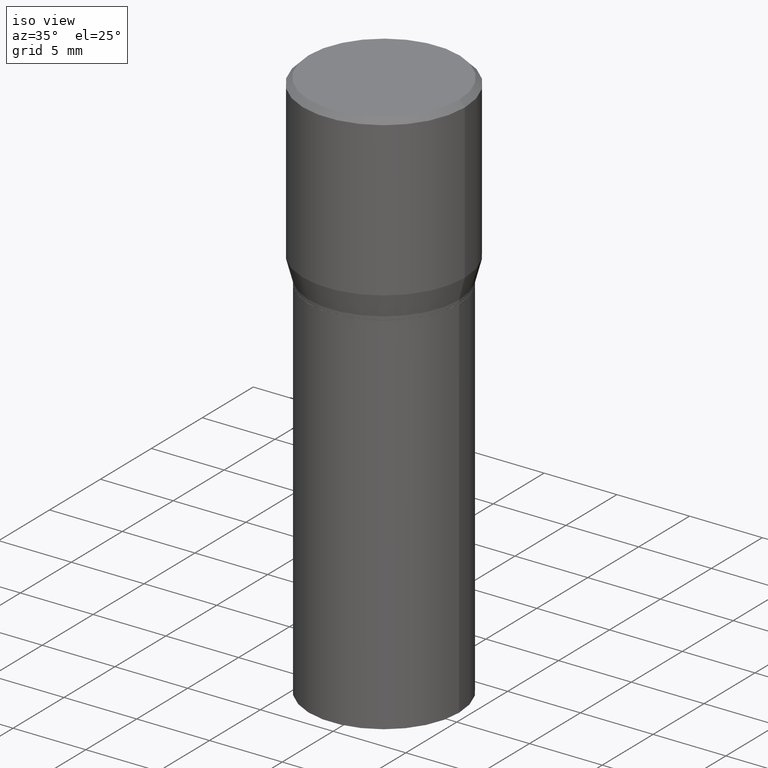
[diagram: clean part render]
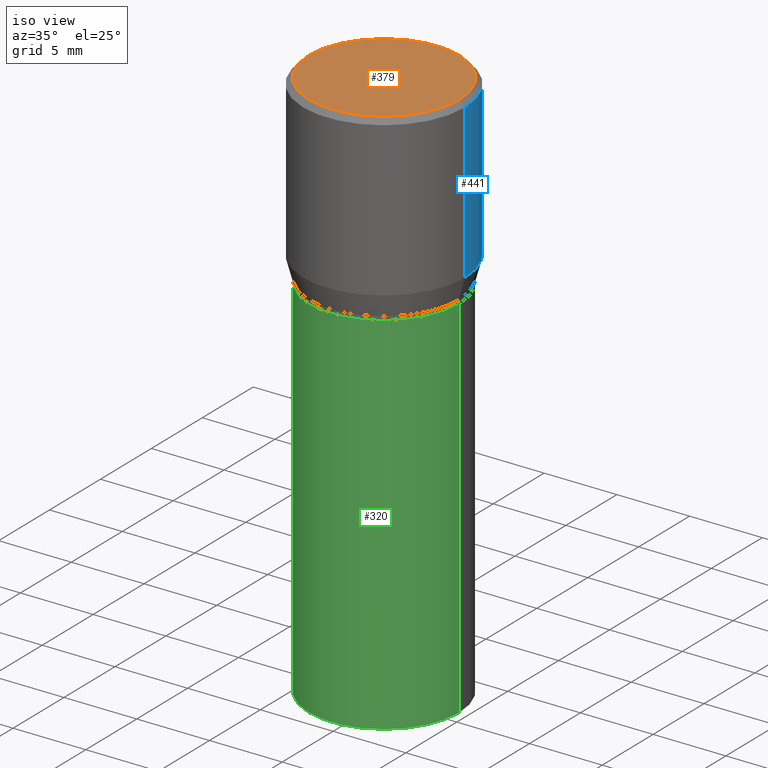
[diagram: same view with three faces highlighted in distinct colors, each labeled with its STEP entity id]
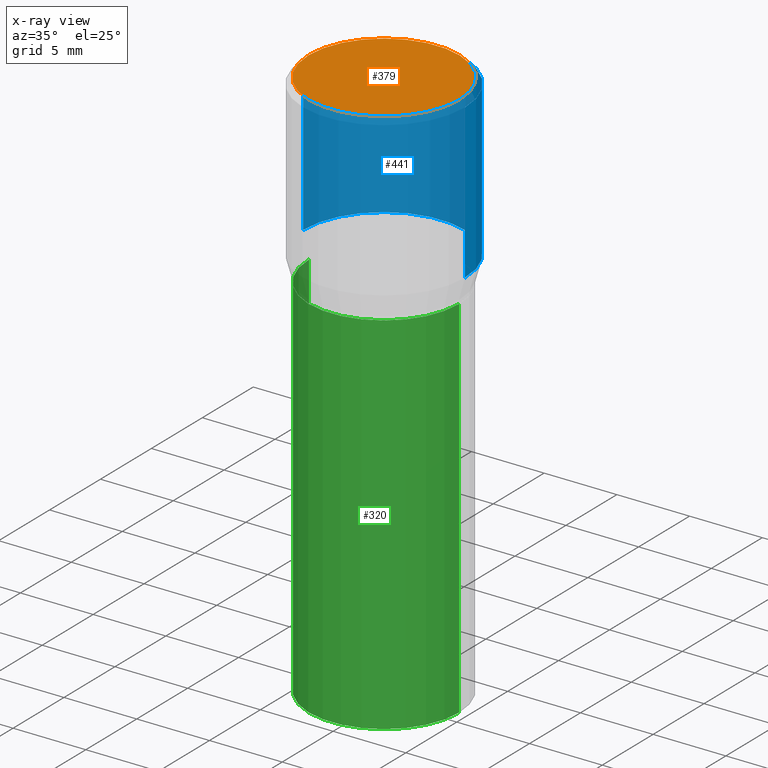
[diagram: x-ray of the same camera — body ghosted, the three highlighted faces saturated]
A machine part, iso view with three faces highlighted in distinct colors.
The next image is the same camera in x-ray (body ghosted, the three faces saturated) — at least one of them is partly hidden behind the body in this view.
Their STEP definitions:

[orange] entity #379 — the highlighted planar face has unit normal (0, -0, -1).
#5 = DIRECTION ( 'NONE',  ( 2.438088387897960049E-29, -3.491481338843145188E-15, -1.000000000000000000 ) ) ;
#19 = EDGE_CURVE ( 'NONE', #73, #389, #262, .T. ) ;
#64 = EDGE_CURVE ( 'NONE', #389, #73, #450, .T. ) ;
#70 = ORIENTED_EDGE ( 'NONE', *, *, #19, .T. ) ;
#73 = VERTEX_POINT ( 'NONE', #97 ) ;
#77 = PLANE ( 'NONE',  #323 ) ;
#94 = CARTESIAN_POINT ( 'NONE',  ( -2.592568563193567003E-45, 3.701500806376036554E-31, 1.060151966214568974E-16 ) ) ;
#97 = CARTESIAN_POINT ( 'NONE',  ( -0.2037499999999999867, 1.448964755619900421E-15, 1.060151966214468518E-16 ) ) ;
#140 = DIRECTION ( 'NONE',  ( 1.000000000000000000, -6.982962677686266711E-15, 4.875065411617369217E-29 ) ) ;
#141 = DIRECTION ( 'NONE',  ( -2.445468806185136597E-29, 3.491481338843145583E-15, 1.000000000000000000 ) ) ;
#144 = DIRECTION ( 'NONE',  ( -1.000000000000000000, 6.982962677686265922E-15, -4.876176775795935793E-29 ) ) ;
#168 = DIRECTION ( 'NONE',  ( -2.445468806185136597E-29, 3.491481338843145583E-15, 1.000000000000000000 ) ) ;
#186 = EDGE_LOOP ( 'NONE', ( #70, #187 ) ) ;
#187 = ORIENTED_EDGE ( 'NONE', *, *, #64, .T. ) ;
#195 = CARTESIAN_POINT ( 'NONE',  ( 0.2037499999999999867, -1.475466312070559275E-15, 1.060151966214670170E-16 ) ) ;
#221 = CARTESIAN_POINT ( 'NONE',  ( -2.592568563193567003E-45, 3.701500806376036554E-31, 1.060151966214568974E-16 ) ) ;
#262 = CIRCLE ( 'NONE', #299, 0.2037499999999999867 ) ;
#292 = DIRECTION ( 'NONE',  ( 1.000000000000000000, -6.982962677686266711E-15, 4.875065411617369217E-29 ) ) ;
#299 = AXIS2_PLACEMENT_3D ( 'NONE', #94, #141, #292 ) ;
#323 = AXIS2_PLACEMENT_3D ( 'NONE', #366, #5, #144 ) ;
#366 = CARTESIAN_POINT ( 'NONE',  ( 1.422778645578576487E-15, 0.2037499999999999867, -6.583817244785623957E-16 ) ) ;
#379 = ADVANCED_FACE ( 'NONE', ( #390 ), #77, .F. ) ;
#389 = VERTEX_POINT ( 'NONE', #195 ) ;
#390 = FACE_OUTER_BOUND ( 'NONE', #186, .T. ) ;
#411 = AXIS2_PLACEMENT_3D ( 'NONE', #221, #168, #140 ) ;
#450 = CIRCLE ( 'NONE', #411, 0.2037499999999999867 ) ;

[blue] entity #441 — the highlighted cylindrical surface (partial cylindrical patch) has radius 5.5562 mm, axis along (-0, 0, 1).
#4 = VERTEX_POINT ( 'NONE', #233 ) ;
#8 = DIRECTION ( 'NONE',  ( -2.445468806185136597E-29, 3.491481338843145583E-15, 1.000000000000000000 ) ) ;
#18 = VERTEX_POINT ( 'NONE', #134 ) ;
#40 = CIRCLE ( 'NONE', #138, 0.2187500000000000000 ) ;
#47 = FACE_OUTER_BOUND ( 'NONE', #108, .T. ) ;
#59 = DIRECTION ( 'NONE',  ( 1.000000000000000000, -6.982962677686266711E-15, 0.000000000000000000 ) ) ;
#85 = ORIENTED_EDGE ( 'NONE', *, *, #434, .F. ) ;
#87 = ORIENTED_EDGE ( 'NONE', *, *, #361, .T. ) ;
#100 = LINE ( 'NONE', #391, #386 ) ;
#105 = LINE ( 'NONE', #331, #128 ) ;
#108 = EDGE_LOOP ( 'NONE', ( #87, #227, #165, #85 ) ) ;
#113 = VERTEX_POINT ( 'NONE', #173 ) ;
#128 = VECTOR ( 'NONE', #294, 39.37007874015748143 ) ;
#134 = CARTESIAN_POINT ( 'NONE',  ( -0.2187500000000000000, 7.746759649129616577E-16, -0.01499999999999999944 ) ) ;
#138 = AXIS2_PLACEMENT_3D ( 'NONE', #311, #281, #59 ) ;
#154 = DIRECTION ( 'NONE',  ( -2.445468806185136877E-29, 3.491481338843145188E-15, 1.000000000000000000 ) ) ;
#165 = ORIENTED_EDGE ( 'NONE', *, *, #459, .F. ) ;
#173 = CARTESIAN_POINT ( 'NONE',  ( -0.2187500000000000000, 4.741191543335144142E-17, -0.4315934048615475138 ) ) ;
#227 = ORIENTED_EDGE ( 'NONE', *, *, #385, .T. ) ;
#233 = CARTESIAN_POINT ( 'NONE',  ( 0.2187500000000000000, -3.034423404785738170E-15, -0.4315934048615475138 ) ) ;
#238 = CIRCLE ( 'NONE', #332, 0.2187500000000000000 ) ;
#261 = DIRECTION ( 'NONE',  ( 1.000000000000000000, -6.982962677686265133E-15, 0.000000000000000000 ) ) ;
#281 = DIRECTION ( 'NONE',  ( -2.445468806185136597E-29, 3.491481338843145583E-15, 1.000000000000000000 ) ) ;
#293 = VERTEX_POINT ( 'NONE', #306 ) ;
#294 = DIRECTION ( 'NONE',  ( -2.445468806185136877E-29, 3.491481338843145188E-15, 1.000000000000000000 ) ) ;
#301 = DIRECTION ( 'NONE',  ( -2.445468806185136597E-29, 3.491481338843145583E-15, 1.000000000000000000 ) ) ;
#306 = CARTESIAN_POINT ( 'NONE',  ( 0.2187500000000000000, -1.579895305826517922E-15, -0.01499999999999999944 ) ) ;
#311 = CARTESIAN_POINT ( 'NONE',  ( 3.668203209277705088E-31, -5.237222008264718399E-17, -0.01499999999999999944 ) ) ;
#331 = CARTESIAN_POINT ( 'NONE',  ( 0.2187500000000000000, -1.527523085743870843E-15, 1.066663669705360885E-29 ) ) ;
#332 = AXIS2_PLACEMENT_3D ( 'NONE', #431, #8, #261 ) ;
#361 = EDGE_CURVE ( 'NONE', #4, #113, #238, .T. ) ;
#385 = EDGE_CURVE ( 'NONE', #113, #18, #100, .T. ) ;
#386 = VECTOR ( 'NONE', #154, 39.37007874015748143 ) ;
#391 = CARTESIAN_POINT ( 'NONE',  ( -0.2187500000000000000, 1.554312234475219157E-15, -1.076017050993260622E-29 ) ) ;
#395 = DIRECTION ( 'NONE',  ( 1.000000000000000000, -6.982962677686266711E-15, 4.876176775795935232E-29 ) ) ;
#398 = CARTESIAN_POINT ( 'NONE',  ( 0.000000000000000000, 0.000000000000000000, 0.000000000000000000 ) ) ;
#431 = CARTESIAN_POINT ( 'NONE',  ( 1.055448208544146876E-29, -1.506900319041867721E-15, -0.4315934048615475138 ) ) ;
#433 = CYLINDRICAL_SURFACE ( 'NONE', #451, 0.2187500000000000000 ) ;
#434 = EDGE_CURVE ( 'NONE', #4, #293, #105, .T. ) ;
#441 = ADVANCED_FACE ( 'NONE', ( #47 ), #433, .T. ) ;
#451 = AXIS2_PLACEMENT_3D ( 'NONE', #398, #301, #395 ) ;
#459 = EDGE_CURVE ( 'NONE', #293, #18, #40, .T. ) ;

[green] entity #320 — the highlighted cylindrical surface (partial cylindrical patch) has radius 5.1587 mm, axis along (-0, 0, 1).
#31 = CIRCLE ( 'NONE', #288, 0.2031000000000000028 ) ;
#38 = FACE_OUTER_BOUND ( 'NONE', #362, .T. ) ;
#42 = CARTESIAN_POINT ( 'NONE',  ( 0.2031000000000000028, -6.655461728102798952E-15, -1.500000000000000222 ) ) ;
#54 = AXIS2_PLACEMENT_3D ( 'NONE', #136, #98, #295 ) ;
#82 = EDGE_CURVE ( 'NONE', #307, #325, #359, .T. ) ;
#84 = ORIENTED_EDGE ( 'NONE', *, *, #260, .F. ) ;
#86 = CARTESIAN_POINT ( 'NONE',  ( -0.2031000000000000028, -2.048369042514382480E-15, -1.500000000000000222 ) ) ;
#98 = DIRECTION ( 'NONE',  ( -2.445468806185136597E-29, 3.491481338843145583E-15, 1.000000000000000000 ) ) ;
#101 = DIRECTION ( 'NONE',  ( 1.000000000000000000, -6.982962677686264344E-15, 0.000000000000000000 ) ) ;
#115 = VECTOR ( 'NONE', #286, 39.37007874015748143 ) ;
#126 = CARTESIAN_POINT ( 'NONE',  ( -0.2031000000000000028, 1.443112296328763497E-15, -9.990357168307714203E-30 ) ) ;
#136 = CARTESIAN_POINT ( 'NONE',  ( 0.000000000000000000, 0.000000000000000000, 0.000000000000000000 ) ) ;
#151 = CARTESIAN_POINT ( 'NONE',  ( 3.668203209277704895E-29, -5.237222008264718177E-15, -1.500000000000000222 ) ) ;
#159 = DIRECTION ( 'NONE',  ( 1.000000000000000000, -6.982962677686265922E-15, 0.000000000000000000 ) ) ;
#191 = CARTESIAN_POINT ( 'NONE',  ( 0.2031000000000000028, -1.418239719838080775E-15, 9.903515031641546145E-30 ) ) ;
#206 = CARTESIAN_POINT ( 'NONE',  ( 1.222734403092568719E-29, -1.745740669421573186E-15, -0.5000000000000001110 ) ) ;
#225 = VECTOR ( 'NONE', #333, 39.37007874015748143 ) ;
#228 = LINE ( 'NONE', #191, #225 ) ;
#236 = EDGE_CURVE ( 'NONE', #307, #237, #420, .T. ) ;
#237 = VERTEX_POINT ( 'NONE', #423 ) ;
#252 = AXIS2_PLACEMENT_3D ( 'NONE', #151, #338, #101 ) ;
#254 = ORIENTED_EDGE ( 'NONE', *, *, #236, .F. ) ;
#260 = EDGE_CURVE ( 'NONE', #237, #378, #31, .T. ) ;
#286 = DIRECTION ( 'NONE',  ( -2.445468806185136877E-29, 3.491481338843145188E-15, 1.000000000000000000 ) ) ;
#288 = AXIS2_PLACEMENT_3D ( 'NONE', #206, #407, #159 ) ;
#295 = DIRECTION ( 'NONE',  ( 1.000000000000000000, -6.982962677686266711E-15, 4.876176775795935793E-29 ) ) ;
#307 = VERTEX_POINT ( 'NONE', #86 ) ;
#320 = ADVANCED_FACE ( 'NONE', ( #38 ), #466, .T. ) ;
#325 = VERTEX_POINT ( 'NONE', #42 ) ;
#329 = EDGE_CURVE ( 'NONE', #325, #378, #228, .T. ) ;
#333 = DIRECTION ( 'NONE',  ( -2.445468806185136877E-29, 3.491481338843145188E-15, 1.000000000000000000 ) ) ;
#338 = DIRECTION ( 'NONE',  ( -2.445468806185136597E-29, 3.491481338843145583E-15, 1.000000000000000000 ) ) ;
#347 = CARTESIAN_POINT ( 'NONE',  ( 0.2031000000000000028, -3.163980389259653764E-15, -0.5000000000000001110 ) ) ;
#359 = CIRCLE ( 'NONE', #252, 0.2031000000000000028 ) ;
#362 = EDGE_LOOP ( 'NONE', ( #254, #414, #462, #84 ) ) ;
#378 = VERTEX_POINT ( 'NONE', #347 ) ;
#407 = DIRECTION ( 'NONE',  ( -2.445468806185136597E-29, 3.491481338843145583E-15, 1.000000000000000000 ) ) ;
#414 = ORIENTED_EDGE ( 'NONE', *, *, #82, .T. ) ;
#420 = LINE ( 'NONE', #126, #115 ) ;
#423 = CARTESIAN_POINT ( 'NONE',  ( -0.2031000000000000028, -2.048369042514382480E-15, -0.5000000000000001110 ) ) ;
#462 = ORIENTED_EDGE ( 'NONE', *, *, #329, .T. ) ;
#466 = CYLINDRICAL_SURFACE ( 'NONE', #54, 0.2031000000000000028 ) ;